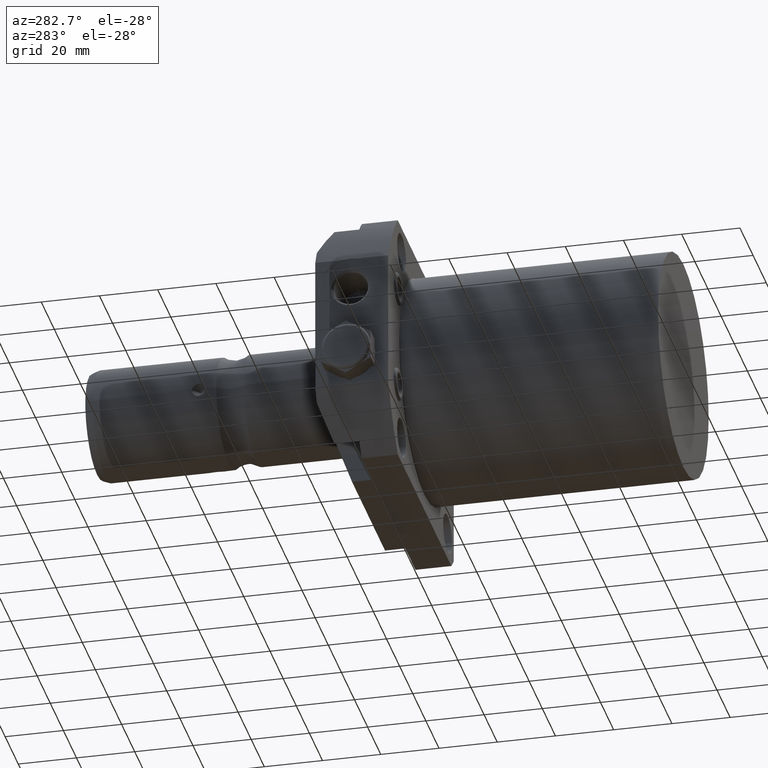
[diagram: clean part render]
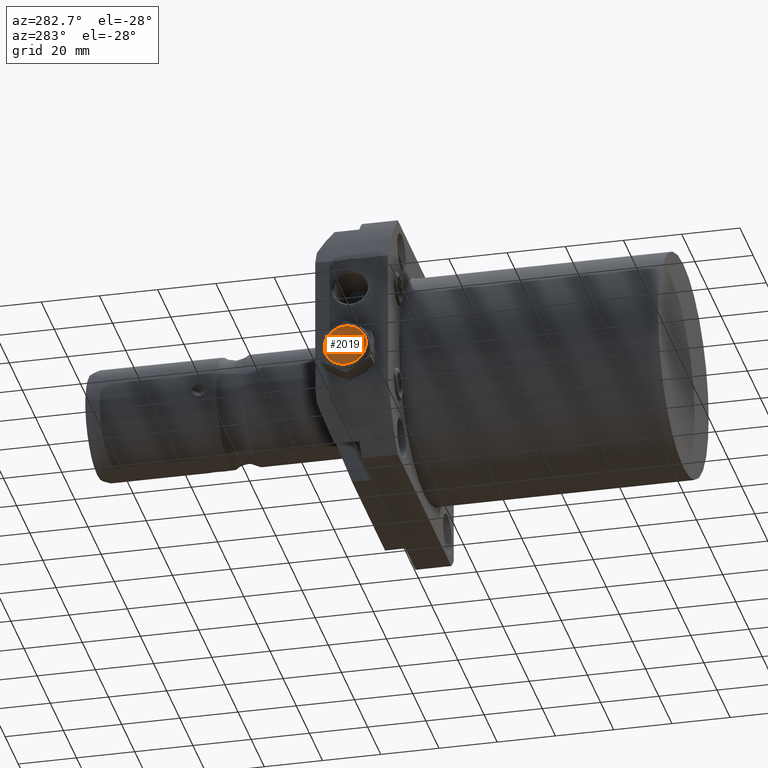
[diagram: same view with one face highlighted and labeled with its STEP entity id]
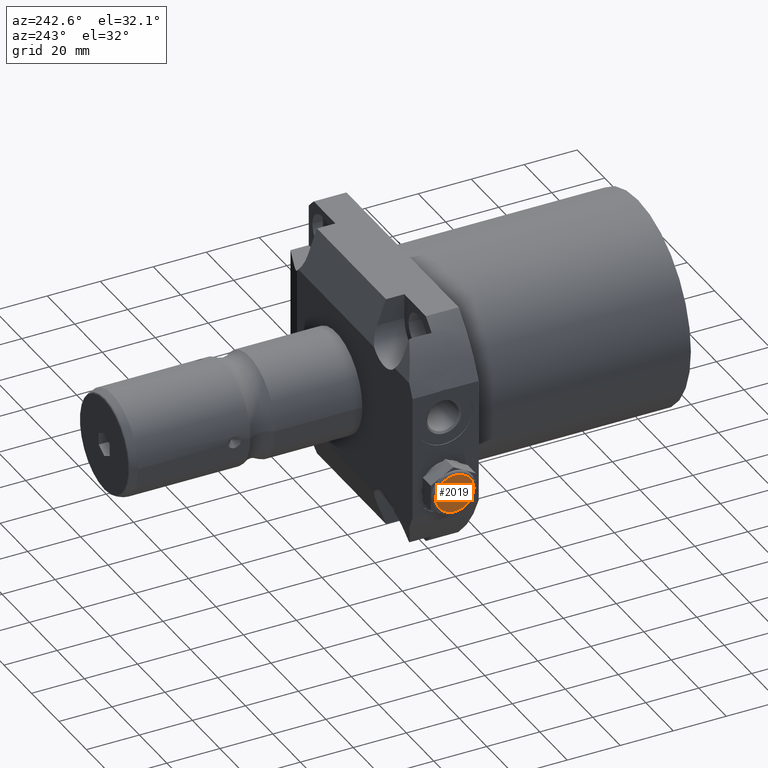
[diagram: same view with one face highlighted and labeled with its STEP entity id]
A machine part, auxiliary view. The second image highlights one B-rep face of the part: STEP entity #2019.
A second angle (auxiliary view) of the same face is appended — the face is thin or edge-on in the first view.
In plain terms, the highlighted planar face has unit normal (-1, 0, 0).
Its self-contained STEP definition (entity closure, byte-faithful):
#17=CARTESIAN_POINT('',(-6.3166E1,1.01905E2,-1.29794E1));
#18=DIRECTION('',(-1.E0,0.E0,0.E0));
#19=DIRECTION('',(0.E0,1.E0,0.E0));
#20=AXIS2_PLACEMENT_3D('',#17,#18,#19);
#22=CARTESIAN_POINT('',(-6.3166E1,1.01905E2,-1.29794E1));
#23=DIRECTION('',(-1.E0,0.E0,0.E0));
#24=DIRECTION('',(0.E0,-1.E0,0.E0));
#25=AXIS2_PLACEMENT_3D('',#22,#23,#24);
#1888=CARTESIAN_POINT('',(-6.3166E1,1.09144E2,-1.29794E1));
#1889=CARTESIAN_POINT('',(-6.3166E1,9.4666E1,-1.29794E1));
#1890=VERTEX_POINT('',#1888);
#1891=VERTEX_POINT('',#1889);
#2008=CARTESIAN_POINT('',(-6.3166E1,1.01905E2,-1.29794E1));
#2009=DIRECTION('',(-1.E0,0.E0,0.E0));
#2010=DIRECTION('',(0.E0,0.E0,1.E0));
#2011=AXIS2_PLACEMENT_3D('',#2008,#2009,#2010);
#2012=PLANE('',#2011);
#2014=ORIENTED_EDGE('',*,*,#2013,.F.);
#2016=ORIENTED_EDGE('',*,*,#2015,.F.);
#2017=EDGE_LOOP('',(#2014,#2016));
#2018=FACE_OUTER_BOUND('',#2017,.F.);
#21=CIRCLE('',#20,7.239E0);
#26=CIRCLE('',#25,7.239E0);
#2013=EDGE_CURVE('',#1890,#1891,#21,.T.);
#2015=EDGE_CURVE('',#1891,#1890,#26,.T.);
#2019=ADVANCED_FACE('',(#2018),#2012,.T.);